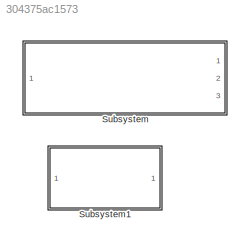
MODEL slx_304375ac1573
KIND library
CONFIG AbsTol = auto
CONFIG EnableMultiTasking = off
CONFIG FixedStep = auto
CONFIG MaxStep = auto
CONFIG MinStep = auto
CONFIG RelTol = 1e-3
CONFIG SampleTimeConstraint = Unconstrained
CONFIG SolverName = VariableStepAuto
CONFIG StartTime = 0.0
CONFIG StopTime = 10.0
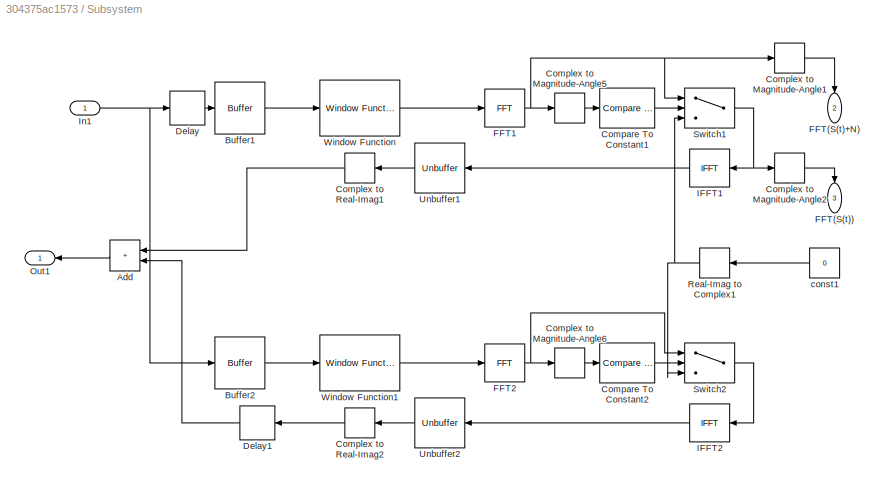
BLOCK [SubSystem] Subsystem
  Ports = [1, 3]
  RequestExecContextInheritance = off
BLOCK [Sum] Subsystem/Add
  IconShape = rectangular
  Ports = [2, 1]
BLOCK [Buffer] Subsystem/Buffer1
  N = FFT_Length
  OutputFrames = off
BLOCK [Buffer] Subsystem/Buffer2
  N = FFT_Length
  OutputFrames = off
BLOCK [Reference] Subsystem/Compare To Constant1  REF=simulink/Logic and Bit
Operations/Compare
To Constant
  Ports = [1, 1]
  SourceBlock = simulink/Logic and Bit\nOperations/Compare\nTo Constant
  SourceProductBaseCode = SL
  SourceType = Compare To Constant
BLOCK [Reference] Subsystem/Compare To Constant2  REF=simulink/Logic and Bit
Operations/Compare
To Constant
  Ports = [1, 1]
  SourceBlock = simulink/Logic and Bit\nOperations/Compare\nTo Constant
  SourceProductBaseCode = SL
  SourceType = Compare To Constant
BLOCK [ComplexToMagnitudeAngle] Subsystem/Complex to Magnitude-Angle1
  Output = Magnitude
  Ports = [1, 1]
BLOCK [ComplexToMagnitudeAngle] Subsystem/Complex to Magnitude-Angle2
  Output = Magnitude
  Ports = [1, 1]
BLOCK [ComplexToMagnitudeAngle] Subsystem/Complex to Magnitude-Angle5
  Output = Magnitude
  Ports = [1, 1]
BLOCK [ComplexToMagnitudeAngle] Subsystem/Complex to Magnitude-Angle6
  Output = Magnitude
  Ports = [1, 1]
BLOCK [ComplexToRealImag] Subsystem/Complex to Real-Imag1
  Output = Real
  Ports = [1, 1]
BLOCK [ComplexToRealImag] Subsystem/Complex to Real-Imag2
  Output = Real
  Ports = [1, 1]
BLOCK [Delay] Subsystem/Delay
  DelayLength = FFT_Length/2
  InitialCondition = 0
  InputPortMap = u0
  Ports = [1, 1]
BLOCK [Delay] Subsystem/Delay1
  DelayLength = FFT_Length/2
  InitialCondition = 0
  InputPortMap = u0
  Ports = [1, 1]
BLOCK [Outport] Subsystem/FFT(S(t))
  NameLocation = left
  Port = 3
BLOCK [Outport] Subsystem/FFT(S(t)+N)
  NameLocation = left
  Port = 2
BLOCK [Reference] Subsystem/FFT1  REF=dspxfrm3/FFT
  Ports = [1, 1]
  SourceBlock = dspxfrm3/FFT
  SourceProductBaseCode = DS
  SourceType = FFT
BLOCK [Reference] Subsystem/FFT2  REF=dspxfrm3/FFT
  Ports = [1, 1]
  SourceBlock = dspxfrm3/FFT
  SourceProductBaseCode = DS
  SourceType = FFT
BLOCK [Reference] Subsystem/IFFT1  REF=dspxfrm3/IFFT
  Ports = [1, 1]
  SourceBlock = dspxfrm3/IFFT
  SourceProductBaseCode = DS
  SourceType = IFFT
BLOCK [Reference] Subsystem/IFFT2  REF=dspxfrm3/IFFT
  Ports = [1, 1]
  SourceBlock = dspxfrm3/IFFT
  SourceProductBaseCode = DS
  SourceType = IFFT
BLOCK [Inport] Subsystem/In1
BLOCK [Outport] Subsystem/Out1
BLOCK [RealImagToComplex] Subsystem/Real-Imag to Complex1
  Input = Real
  NameLocation = top
  Ports = [1, 1]
BLOCK [Switch] Subsystem/Switch1
  Criteria = u2 > Threshold
  InputSameDT = off
  SaturateOnIntegerOverflow = off
BLOCK [Switch] Subsystem/Switch2
  Criteria = u2 > Threshold
  InputSameDT = off
  SaturateOnIntegerOverflow = off
BLOCK [Unbuffer] Subsystem/Unbuffer1
  Ports = [1, 1]
BLOCK [Unbuffer] Subsystem/Unbuffer2
  Ports = [1, 1]
BLOCK [Reference] Subsystem/Window Function  REF=dspsigops/Window
Function
  Ports = [1, 1]
  SourceBlock = dspsigops/Window\nFunction
  SourceProductBaseCode = DS
  SourceType = Window Function
BLOCK [Reference] Subsystem/Window Function1  REF=dspsigops/Window
Function
  Ports = [1, 1]
  SourceBlock = dspsigops/Window\nFunction
  SourceProductBaseCode = DS
  SourceType = Window Function
BLOCK [Constant] Subsystem/const1
  OutDataTypeStr = Inherit: Inherit via back propagation
  Value = 0
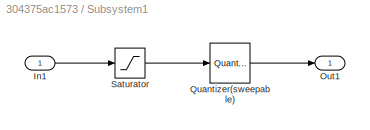
BLOCK [SubSystem] Subsystem1
  Ports = [1, 1]
  RequestExecContextInheritance = off
BLOCK [Inport] Subsystem1/In1
BLOCK [Outport] Subsystem1/Out1
BLOCK [Quantizer] Subsystem1/Quantizer(sweepable)
  QuantizationInterval = SatLvl/bdep
BLOCK [Saturate] Subsystem1/Saturator
  LowerLimit = (SatLvl)*-1
  UpperLimit = SatLvl
LINE Subsystem/Add:1 -> Subsystem/Out1:1
LINE Subsystem/Buffer1:1 -> Subsystem/Window Function:1
LINE Subsystem/Buffer2:1 -> Subsystem/Window Function1:1
LINE Subsystem/Compare To Constant1:1 -> Subsystem/Switch1:2
LINE Subsystem/Compare To Constant2:1 -> Subsystem/Switch2:2
LINE Subsystem/Complex to Magnitude-Angle1:1 -> Subsystem/FFT(S(t)+N):1
LINE Subsystem/Complex to Magnitude-Angle2:1 -> Subsystem/FFT(S(t)):1
LINE Subsystem/Complex to Magnitude-Angle5:1 -> Subsystem/Compare To Constant1:1
LINE Subsystem/Complex to Magnitude-Angle6:1 -> Subsystem/Compare To Constant2:1
LINE Subsystem/Complex to Real-Imag1:1 -> Subsystem/Add:1
LINE Subsystem/Complex to Real-Imag2:1 -> Subsystem/Delay1:1
LINE Subsystem/Delay1:1 -> Subsystem/Add:2
LINE Subsystem/Delay:1 -> Subsystem/Buffer1:1
NET Subsystem/FFT1:1 -> Subsystem/Complex to Magnitude-Angle1:1, Subsystem/Complex to Magnitude-Angle5:1, Subsystem/Switch1:1
NET Subsystem/FFT2:1 -> Subsystem/Complex to Magnitude-Angle6:1, Subsystem/Switch2:1
LINE Subsystem/IFFT1:1 -> Subsystem/Unbuffer1:1
LINE Subsystem/IFFT2:1 -> Subsystem/Unbuffer2:1
NET Subsystem/In1:1 -> Subsystem/Buffer2:1, Subsystem/Delay:1
NET Subsystem/Real-Imag to Complex1:1 -> Subsystem/Switch1:3, Subsystem/Switch2:3
NET Subsystem/Switch1:1 -> Subsystem/Complex to Magnitude-Angle2:1, Subsystem/IFFT1:1
LINE Subsystem/Switch2:1 -> Subsystem/IFFT2:1
LINE Subsystem/Unbuffer1:1 -> Subsystem/Complex to Real-Imag1:1
LINE Subsystem/Unbuffer2:1 -> Subsystem/Complex to Real-Imag2:1
LINE Subsystem/Window Function1:1 -> Subsystem/FFT2:1
LINE Subsystem/Window Function:1 -> Subsystem/FFT1:1
LINE Subsystem/const1:1 -> Subsystem/Real-Imag to Complex1:1
LINE Subsystem1/In1:1 -> Subsystem1/Saturator:1
LINE Subsystem1/Quantizer(sweepable):1 -> Subsystem1/Out1:1
LINE Subsystem1/Saturator:1 -> Subsystem1/Quantizer(sweepable):1
note: NET lines group one-source signal fan-out (src -> all destinations, sorted); 1:1 wires keep LINE
